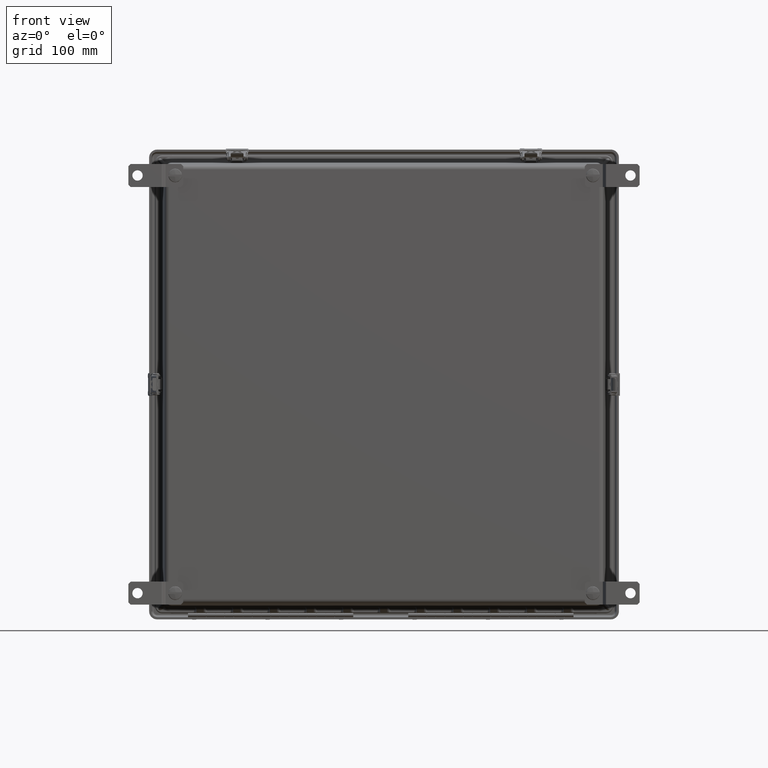
[diagram: clean part render]
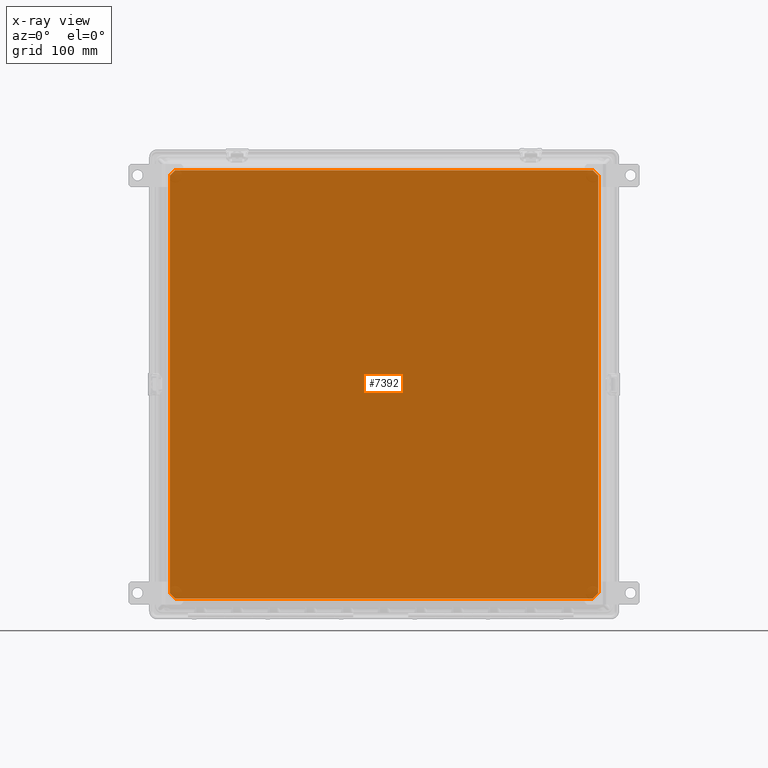
[diagram: x-ray — body ghosted, one internal face saturated and labeled with its STEP entity id]
A machine part, front view, then the same camera in x-ray: the body is ghosted and one INTERNAL B-rep face — a face not visible from any outside direction — is saturated and labeled: STEP entity #7392.
In plain terms, the highlighted planar face has unit normal (0, -1, 0).
Its self-contained STEP definition (entity closure, byte-faithful):
#261 = VERTEX_POINT ( 'NONE', #61915 ) ;
#1569 = CARTESIAN_POINT ( 'NONE',  ( 11.66534625306872600, -2.404999999999999400, 11.32800000000000500 ) ) ;
#3888 = CARTESIAN_POINT ( 'NONE',  ( -11.66534625306872500, -2.404999999999999400, -11.37484991675363100 ) ) ;
#5756 = EDGE_CURVE ( 'NONE', #38188, #261, #28909, .T. ) ;
#6574 = LINE ( 'NONE', #34783, #29646 ) ;
#6893 = CARTESIAN_POINT ( 'NONE',  ( -11.32800000000000300, -2.404999999999999400, -11.66534625306872100 ) ) ;
#7392 = ADVANCED_FACE ( 'NONE', ( #37281 ), #19847, .T. ) ;
#7538 = EDGE_CURVE ( 'NONE', #27590, #30046, #44226, .T. ) ;
#8825 = LINE ( 'NONE', #24638, #18811 ) ;
#9523 = VECTOR ( 'NONE', #51398, 39.37007874015748900 ) ;
#9773 = CARTESIAN_POINT ( 'NONE',  ( 11.37484991675363200, -2.404999999999999400, -11.66534625306872300 ) ) ;
#10268 = DIRECTION ( 'NONE',  ( 0.7071067811865474600, -0.0000000000000000000, -0.7071067811865474600 ) ) ;
#10342 = ORIENTED_EDGE ( 'NONE', *, *, #31790, .T. ) ;
#11216 = DIRECTION ( 'NONE',  ( 0.7071067811865474600, -0.0000000000000000000, 0.7071067811865474600 ) ) ;
#15387 = DIRECTION ( 'NONE',  ( 1.000000000000000000, -0.0000000000000000000, -0.0000000000000000000 ) ) ;
#15990 = CARTESIAN_POINT ( 'NONE',  ( -11.37484991675363200, -2.404999999999999400, -11.66534625306872300 ) ) ;
#16765 = VECTOR ( 'NONE', #55818, 39.37007874015748100 ) ;
#18811 = VECTOR ( 'NONE', #39273, 39.37007874015748100 ) ;
#19186 = EDGE_CURVE ( 'NONE', #57556, #38188, #8825, .T. ) ;
#19847 = PLANE ( 'NONE',  #25349 ) ;
#20930 = CARTESIAN_POINT ( 'NONE',  ( 11.37484991675363200, -2.404999999999999400, 11.66534625306872300 ) ) ;
#21617 = VERTEX_POINT ( 'NONE', #15990 ) ;
#22208 = EDGE_LOOP ( 'NONE', ( #10342, #54781, #36203, #51121, #33091, #54795, #59247, #49077 ) ) ;
#24281 = EDGE_CURVE ( 'NONE', #26379, #27590, #6574, .T. ) ;
#24477 = VECTOR ( 'NONE', #15387, 39.37007874015748100 ) ;
#24541 = CARTESIAN_POINT ( 'NONE',  ( 11.52009808491117200, -2.404999999999999400, -11.52009808491117400 ) ) ;
#24638 = CARTESIAN_POINT ( 'NONE',  ( -11.66534625306872500, -2.404999999999999400, 11.32800000000000500 ) ) ;
#25349 = AXIS2_PLACEMENT_3D ( 'NONE', #54195, #59094, #29752 ) ;
#25598 = CARTESIAN_POINT ( 'NONE',  ( -11.52009808491117900, -2.404999999999999400, 11.52009808491117800 ) ) ;
#26255 = DIRECTION ( 'NONE',  ( -0.0000000000000000000, -0.0000000000000000000, -1.000000000000000000 ) ) ;
#26379 = VERTEX_POINT ( 'NONE', #20930 ) ;
#27590 = VERTEX_POINT ( 'NONE', #40090 ) ;
#28909 = LINE ( 'NONE', #25598, #53467 ) ;
#29646 = VECTOR ( 'NONE', #10268, 39.37007874015748900 ) ;
#29752 = DIRECTION ( 'NONE',  ( 0.0000000000000000000, 0.0000000000000000000, 1.000000000000000000 ) ) ;
#30046 = VERTEX_POINT ( 'NONE', #54380 ) ;
#30229 = EDGE_CURVE ( 'NONE', #37449, #21617, #44476, .T. ) ;
#31790 = EDGE_CURVE ( 'NONE', #21617, #57556, #61763, .T. ) ;
#33091 = ORIENTED_EDGE ( 'NONE', *, *, #24281, .T. ) ;
#34783 = CARTESIAN_POINT ( 'NONE',  ( 0.1920980849111719500, -2.404999999999999400, 22.84809808491118600 ) ) ;
#36203 = ORIENTED_EDGE ( 'NONE', *, *, #5756, .T. ) ;
#37281 = FACE_OUTER_BOUND ( 'NONE', #22208, .T. ) ;
#37449 = VERTEX_POINT ( 'NONE', #9773 ) ;
#37564 = LINE ( 'NONE', #44848, #24477 ) ;
#38188 = VERTEX_POINT ( 'NONE', #57505 ) ;
#38733 = DIRECTION ( 'NONE',  ( -0.7071067811865474600, -0.0000000000000000000, -0.7071067811865474600 ) ) ;
#39160 = LINE ( 'NONE', #24541, #40724 ) ;
#39273 = DIRECTION ( 'NONE',  ( -0.0000000000000000000, -0.0000000000000000000, 1.000000000000000000 ) ) ;
#40090 = CARTESIAN_POINT ( 'NONE',  ( 11.66534625306872500, -2.404999999999999400, 11.37484991675363100 ) ) ;
#40724 = VECTOR ( 'NONE', #38733, 39.37007874015748900 ) ;
#44226 = LINE ( 'NONE', #1569, #55673 ) ;
#44476 = LINE ( 'NONE', #6893, #16765 ) ;
#44848 = CARTESIAN_POINT ( 'NONE',  ( -11.32800000000000800, -2.404999999999999400, 11.66534625306872300 ) ) ;
#46475 = CARTESIAN_POINT ( 'NONE',  ( -22.84809808491118600, -2.404999999999999400, -0.1920980849111690900 ) ) ;
#49077 = ORIENTED_EDGE ( 'NONE', *, *, #30229, .T. ) ;
#51121 = ORIENTED_EDGE ( 'NONE', *, *, #59324, .T. ) ;
#51398 = DIRECTION ( 'NONE',  ( -0.7071067811865474600, 0.0000000000000000000, 0.7071067811865474600 ) ) ;
#53467 = VECTOR ( 'NONE', #11216, 39.37007874015748900 ) ;
#54195 = CARTESIAN_POINT ( 'NONE',  ( -11.32800000000000800, -2.404999999999999400, 11.32800000000000500 ) ) ;
#54380 = CARTESIAN_POINT ( 'NONE',  ( 11.66534625306872500, -2.404999999999999400, -11.37484991675363100 ) ) ;
#54781 = ORIENTED_EDGE ( 'NONE', *, *, #19186, .T. ) ;
#54795 = ORIENTED_EDGE ( 'NONE', *, *, #7538, .T. ) ;
#55673 = VECTOR ( 'NONE', #26255, 39.37007874015748100 ) ;
#55818 = DIRECTION ( 'NONE',  ( -1.000000000000000000, 0.0000000000000000000, -0.0000000000000000000 ) ) ;
#57505 = CARTESIAN_POINT ( 'NONE',  ( -11.66534625306872500, -2.404999999999999400, 11.37484991675363100 ) ) ;
#57556 = VERTEX_POINT ( 'NONE', #3888 ) ;
#58681 = EDGE_CURVE ( 'NONE', #30046, #37449, #39160, .T. ) ;
#59094 = DIRECTION ( 'NONE',  ( -0.0000000000000000000, 1.000000000000000000, 0.0000000000000000000 ) ) ;
#59247 = ORIENTED_EDGE ( 'NONE', *, *, #58681, .T. ) ;
#59324 = EDGE_CURVE ( 'NONE', #261, #26379, #37564, .T. ) ;
#61763 = LINE ( 'NONE', #46475, #9523 ) ;
#61915 = CARTESIAN_POINT ( 'NONE',  ( -11.37484991675363200, -2.404999999999999400, 11.66534625306872300 ) ) ;